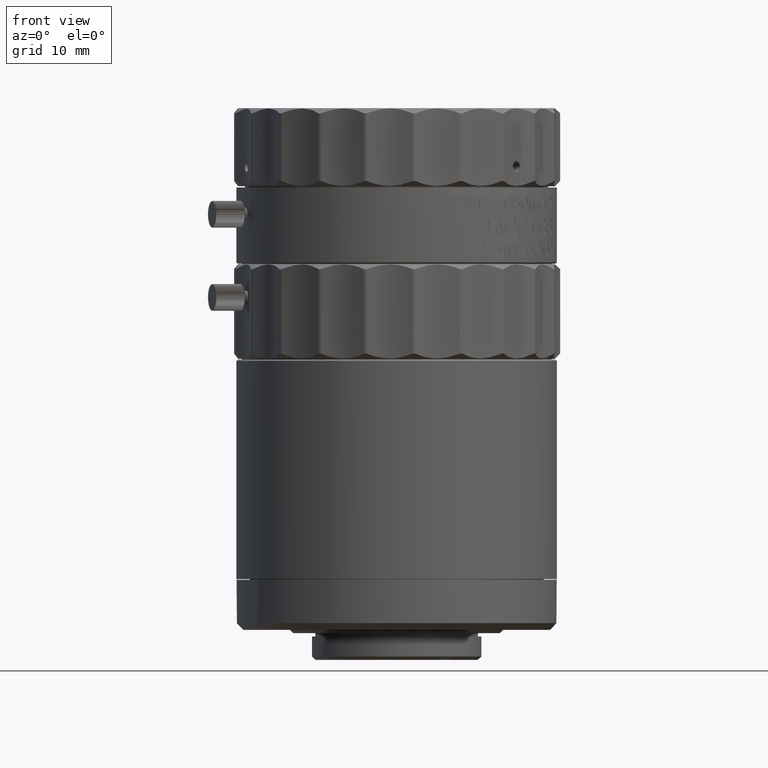
[diagram: clean part render]
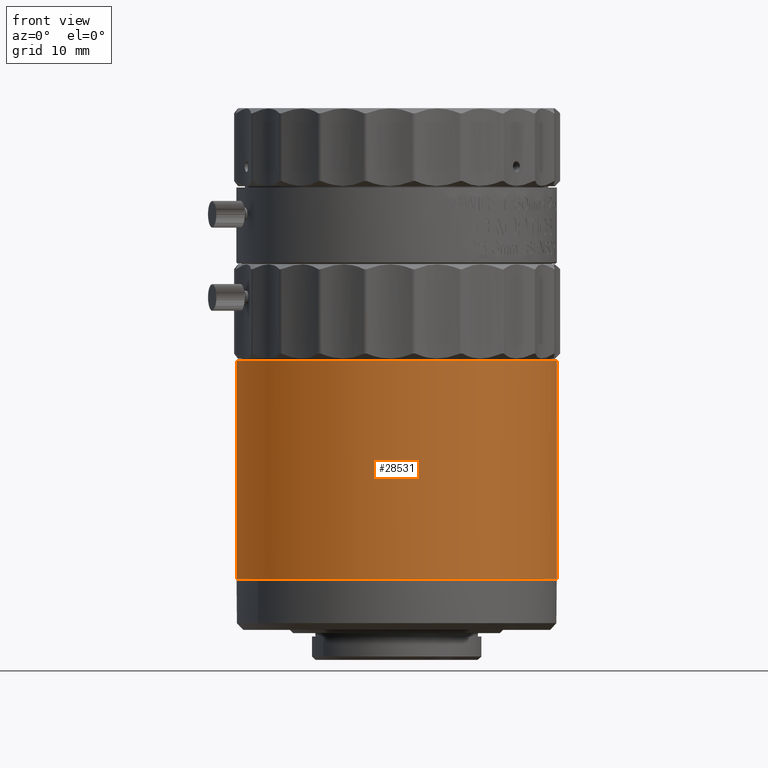
[diagram: same view with one face highlighted and labeled with its STEP entity id]
A machine part, front view. The second image highlights one B-rep face of the part: STEP entity #28531.
In plain terms, the highlighted cylindrical surface (partial cylindrical patch) has radius 24 mm, axis along (0, 0, -1).
Its self-contained STEP definition (entity closure, byte-faithful):
#776 = CARTESIAN_POINT ( 'NONE',  ( 47.99999999548978025, 149.2256510172016988, -58.62999999999953360 ) ) ;
#1317 = CARTESIAN_POINT ( 'NONE',  ( 8.140157981549839050, 132.7151638609855695, -58.62999999999949807 ) ) ;
#3712 = EDGE_CURVE ( 'NONE', #46484, #56178, #78112, .T. ) ;
#8475 = VERTEX_POINT ( 'NONE', #39177 ) ;
#8549 = CARTESIAN_POINT ( 'NONE',  ( 5.918716512470976632, 134.9366053300650776, -58.62999999999951228 ) ) ;
#9687 = CARTESIAN_POINT ( 'NONE',  ( 22.42920366869163118, 126.7964473440002564, -58.62999999999951228 ) ) ;
#10675 = VECTOR ( 'NONE', #57140, 1000.000000000000000 ) ;
#16157 = CARTESIAN_POINT ( 'NONE',  ( 18.73170731256040256, 127.3818131976463803, -25.94999999999355111 ) ) ;
#16403 = CARTESIAN_POINT ( 'NONE',  ( 38.63975500080410086, 131.7138643300405931, -58.62999999999950518 ) ) ;
#17255 = EDGE_LOOP ( 'NONE', ( #30216, #107360, #44828, #75118, #108159 ) ) ;
#17289 = FACE_OUTER_BOUND ( 'NONE', #17255, .T. ) ;
#17513 = CARTESIAN_POINT ( 'NONE',  ( 31.73317579617914674, 128.0222208338436189, -58.62999999999949807 ) ) ;
#17623 = CARTESIAN_POINT ( 'NONE',  ( 47.79843597074157202, 147.2123008428603157, -25.94999999999374651 ) ) ;
#18085 = CARTESIAN_POINT ( 'NONE',  ( 39.85984200942494482, 132.7151638609809652, -58.62999999999951228 ) ) ;
#18211 = CARTESIAN_POINT ( 'NONE',  ( 44.85495547797269467, 138.7846825763465972, -25.94999999999351914 ) ) ;
#19841 = DIRECTION ( 'NONE',  ( 0.000000000000000000, 0.000000000000000000, -1.000000000000000000 ) ) ;
#20731 = CARTESIAN_POINT ( 'NONE',  ( 3.573119269014975785, 137.9113028274331043, -25.94999999999264162 ) ) ;
#23616 = VERTEX_POINT ( 'NONE', #44475 ) ;
#24329 = EDGE_CURVE ( 'NONE', #23616, #8475, #108309, .T. ) ;
#24809 = CARTESIAN_POINT ( 'NONE',  ( 0.1547061045958462722, 147.6548935314482662, -58.62999999999950518 ) ) ;
#25493 = CARTESIAN_POINT ( 'NONE',  ( 46.40759985592043080, 142.0151530484752982, -25.94999999999360796 ) ) ;
#25934 = CARTESIAN_POINT ( 'NONE',  ( 16.26682419479427466, 128.0222208338458643, -58.62999999999951228 ) ) ;
#26013 = CARTESIAN_POINT ( 'NONE',  ( -4.510000012336590203E-09, 150.7964473435969524, -42.28999999999950177 ) ) ;
#27069 = CARTESIAN_POINT ( 'NONE',  ( 13.36437104265501397, 129.2244562936149919, -58.62999999999951228 ) ) ;
#28531 = ADVANCED_FACE ( 'NONE', ( #17289 ), #51436, .T. ) ;
#30216 = ORIENTED_EDGE ( 'NONE', *, *, #82172, .F. ) ;
#30219 = CARTESIAN_POINT ( 'NONE',  ( 6.945177868924854891, 133.6962295776182827, -25.94999999999261320 ) ) ;
#30617 = CARTESIAN_POINT ( 'NONE',  ( 22.27268136812196886, 126.7916971605616254, -25.94999999999258478 ) ) ;
#31844 = AXIS2_PLACEMENT_3D ( 'NONE', #83922, #31908, #100161 ) ;
#31908 = DIRECTION ( 'NONE',  ( 0.000000000000000000, 0.000000000000000000, -1.000000000000000000 ) ) ;
#33895 = CARTESIAN_POINT ( 'NONE',  ( 37.59327773420465491, 130.9360731952602634, -25.94999999999320650 ) ) ;
#34897 = CARTESIAN_POINT ( 'NONE',  ( 17.77721835126766337, 127.5640477755395352, -58.62999999999951228 ) ) ;
#35468 = CARTESIAN_POINT ( 'NONE',  ( 9.360244990170373924, 131.7138643300447995, -58.62999999999951228 ) ) ;
#39177 = CARTESIAN_POINT ( 'NONE',  ( 47.99999999549599750, 150.7964473442904989, -25.94999999999589946 ) ) ;
#41915 = CARTESIAN_POINT ( 'NONE',  ( 16.09857192830328643, 127.9742686590996357, -25.94999999999245688 ) ) ;
#42165 = CARTESIAN_POINT ( 'NONE',  ( 11.97238381586295297, 129.9684889674368264, -58.62999999999949807 ) ) ;
#42278 = CARTESIAN_POINT ( 'NONE',  ( 47.99999999549599750, 150.7964473442904989, -25.94999999999589946 ) ) ;
#43741 = B_SPLINE_CURVE_WITH_KNOTS ( 'NONE', 3,
 ( #90101, #72769, #89546, #106837, #20731, #30219, #98481, #92828, #41915, #16157 ),
 .UNSPECIFIED., .F., .F.,
 ( 4, 2, 2, 2, 4 ),
 ( 0.6995191522643560145, 0.7746393641982669553, 0.8497595761321780072, 0.9248797880660890591, 1.000000000000000000 ),
 .UNSPECIFIED. ) ;
#44475 = CARTESIAN_POINT ( 'NONE',  ( 18.73170731256040256, 127.3818131976463803, -25.94999999999355111 ) ) ;
#44828 = ORIENTED_EDGE ( 'NONE', *, *, #97066, .F. ) ;
#46484 = VERTEX_POINT ( 'NONE', #86143 ) ;
#47122 = LINE ( 'NONE', #90177, #10675 ) ;
#50565 = CARTESIAN_POINT ( 'NONE',  ( 47.23239956395046590, 144.5736656997776493, -58.62999999999951228 ) ) ;
#51098 = CARTESIAN_POINT ( 'NONE',  ( 4.917416981530578823, 136.1566923386859287, -58.62999999999951228 ) ) ;
#51436 = CYLINDRICAL_SURFACE ( 'NONE', #31844, 24.00000000000000000 ) ;
#51649 = CARTESIAN_POINT ( 'NONE',  ( 43.08258300944518737, 136.1566923386803865, -58.62999999999951228 ) ) ;
#52224 = CARTESIAN_POINT ( 'NONE',  ( 45.57199104587500216, 140.1608183911650087, -58.62999999999951228 ) ) ;
#52334 = CARTESIAN_POINT ( 'NONE',  ( 43.89699548627676506, 137.2568302353301704, -25.94999999999346940 ) ) ;
#56178 = VERTEX_POINT ( 'NONE', #77656 ) ;
#57140 = DIRECTION ( 'NONE',  ( 0.000000000000000000, 0.000000000000000000, -1.000000000000000000 ) ) ;
#58332 = CARTESIAN_POINT ( 'NONE',  ( -4.518404747577697833E-09, 150.7964473435969524, -25.94999999999286899 ) ) ;
#58966 = CARTESIAN_POINT ( 'NONE',  ( 27.14155380804173845, 126.9511534531058459, -58.62999999999951228 ) ) ;
#60083 = CARTESIAN_POINT ( 'NONE',  ( 25.57079632228141719, 126.7964473439997732, -58.62999999999950518 ) ) ;
#60195 = CARTESIAN_POINT ( 'NONE',  ( 36.06801687745453933, 129.9739924083689857, -25.94999999999314610 ) ) ;
#60650 = CARTESIAN_POINT ( 'NONE',  ( 47.99999999549000052, 150.7964473439965332, -58.62999999999975387 ) ) ;
#61218 = CARTESIAN_POINT ( 'NONE',  ( 46.77422650564410844, 143.0632715433042108, -58.62999999999950518 ) ) ;
#65306 = CARTESIAN_POINT ( 'NONE',  ( 31.14087783385467390, 127.8134204609432061, -25.94999999999295426 ) ) ;
#67363 = CARTESIAN_POINT ( 'NONE',  ( -4.510000012336590203E-09, 150.7964473440034965, -58.62999999999975387 ) ) ;
#67778 = VERTEX_POINT ( 'NONE', #58332 ) ;
#68042 = CARTESIAN_POINT ( 'NONE',  ( 40.39208453959206224, 133.1751186395924265, -25.94999999999331664 ) ) ;
#69032 = CARTESIAN_POINT ( 'NONE',  ( 42.08128347850444584, 134.9366053300598765, -58.62999999999949807 ) ) ;
#69588 = CARTESIAN_POINT ( 'NONE',  ( 47.84529388638325287, 147.6548935314413882, -58.62999999999953360 ) ) ;
#72769 = CARTESIAN_POINT ( 'NONE',  ( -4.481541602662645907E-09, 148.0974835747344116, -25.94999999999263096 ) ) ;
#73693 = CARTESIAN_POINT ( 'NONE',  ( 27.64837494882173274, 127.0077731226472650, -25.94999999999281215 ) ) ;
#75118 = ORIENTED_EDGE ( 'NONE', *, *, #86161, .T. ) ;
#76296 = CARTESIAN_POINT ( 'NONE',  ( 0.7676004270277370090, 144.5736656997843852, -58.62999999999949097 ) ) ;
#76413 = CARTESIAN_POINT ( 'NONE',  ( 47.00221923186213502, 143.7176359175210223, -25.94999999999365770 ) ) ;
#76858 = CARTESIAN_POINT ( 'NONE',  ( 44.82795837205312495, 138.7688311643728980, -58.62999999999950518 ) ) ;
#77431 = CARTESIAN_POINT ( 'NONE',  ( 1.225773485333655932, 143.0632715433108615, -58.62999999999950518 ) ) ;
#77656 = CARTESIAN_POINT ( 'NONE',  ( 47.99999999549000052, 150.7964473439965332, -58.62999999999975387 ) ) ;
#78096 = CARTESIAN_POINT ( 'NONE',  ( 41.66551330022360844, 134.4519895466287096, -25.94999999999336993 ) ) ;
#78112 = B_SPLINE_CURVE_WITH_KNOTS ( 'NONE', 3,
 ( #67363, #85241, #24809, #76296, #77431, #85798, #103690, #51098, #8549, #1317, #35468, #42165, #27069, #25934, #34897, #94756, #9687, #60083, #58966, #95323, #17513, #93086, #86372, #16403, #18085, #69032, #51649, #76858, #52224, #61218, #50565, #69588, #776, #60650 ),
 .UNSPECIFIED., .F., .F.,
 ( 4, 2, 2, 2, 2, 2, 2, 2, 2, 2, 2, 2, 2, 2, 2, 2, 4 ),
 ( 0.5000000000000000000, 0.5312500000000001110, 0.5625000000000001110, 0.5937500000000002220, 0.6250000000000002220, 0.6562500000000003331, 0.6875000000000004441, 0.7187500000000004441, 0.7500000000000004441, 0.7812500000000004441, 0.8125000000000003331, 0.8437500000000002220, 0.8750000000000002220, 0.9062500000000002220, 0.9375000000000002220, 0.9687500000000001110, 1.000000000000000000 ),
 .UNSPECIFIED. ) ;
#79717 = LINE ( 'NONE', #26013, #92262 ) ;
#82172 = EDGE_CURVE ( 'NONE', #8475, #56178, #47122, .T. ) ;
#83922 = CARTESIAN_POINT ( 'NONE',  ( 23.99999999549000052, 150.7964473440000006, -42.28999999999950177 ) ) ;
#85241 = CARTESIAN_POINT ( 'NONE',  ( -4.510226710540525795E-09, 149.2256510172086053, -58.62999999999950518 ) ) ;
#85798 = CARTESIAN_POINT ( 'NONE',  ( 2.428008945101928440, 140.1608183911712899, -58.62999999999950518 ) ) ;
#86143 = CARTESIAN_POINT ( 'NONE',  ( -4.510000012336590203E-09, 150.7964473440034965, -58.62999999999975387 ) ) ;
#86161 = EDGE_CURVE ( 'NONE', #67778, #46484, #79717, .T. ) ;
#86372 = CARTESIAN_POINT ( 'NONE',  ( 36.02761617511103509, 129.9684889674333874, -58.62999999999949807 ) ) ;
#89546 = CARTESIAN_POINT ( 'NONE',  ( 0.4595445935155896833, 145.3990993939324881, -25.94999999999264162 ) ) ;
#90101 = CARTESIAN_POINT ( 'NONE',  ( -4.518404747577697833E-09, 150.7964473435969524, -25.94999999999286899 ) ) ;
#90177 = CARTESIAN_POINT ( 'NONE',  ( 47.99999999549000052, 150.7964473444030205, -42.28999999999950177 ) ) ;
#91556 = CARTESIAN_POINT ( 'NONE',  ( 18.73170731256040256, 127.3818131976463803, -25.94999999999355111 ) ) ;
#92262 = VECTOR ( 'NONE', #19841, 1000.000000000000000 ) ;
#92828 = CARTESIAN_POINT ( 'NONE',  ( 13.56687763925893009, 129.0149330870351889, -25.94999999999250662 ) ) ;
#93086 = CARTESIAN_POINT ( 'NONE',  ( 34.63562894831873962, 129.2244562936118939, -58.62999999999950518 ) ) ;
#94756 = CARTESIAN_POINT ( 'NONE',  ( 20.85844618293137032, 126.9511534531067269, -58.62999999999949807 ) ) ;
#95323 = CARTESIAN_POINT ( 'NONE',  ( 30.22278163970560527, 127.5640477755377304, -58.62999999999950518 ) ) ;
#97066 = EDGE_CURVE ( 'NONE', #67778, #23616, #43741, .T. ) ;
#98481 = CARTESIAN_POINT ( 'NONE',  ( 8.989689146179767221, 131.8762207694176709, -25.94999999999258122 ) ) ;
#98865 = CARTESIAN_POINT ( 'NONE',  ( 25.85688984771883270, 126.8013724100383115, -25.94999999999273399 ) ) ;
#99394 = CARTESIAN_POINT ( 'NONE',  ( 32.84174938423713286, 128.4126333536106586, -25.94999999999302887 ) ) ;
#100161 = DIRECTION ( 'NONE',  ( -1.000000000000000000, -1.679327972977280947E-11, 0.000000000000000000 ) ) ;
#103690 = CARTESIAN_POINT ( 'NONE',  ( 3.172041618923402417, 138.7688311643789234, -58.62999999999949097 ) ) ;
#106837 = CARTESIAN_POINT ( 'NONE',  ( 2.246296077932530277, 140.3054621045815793, -25.94999999999263451 ) ) ;
#107208 = CARTESIAN_POINT ( 'NONE',  ( 20.48010806295321728, 126.9884230288033393, -25.94999999999248885 ) ) ;
#107360 = ORIENTED_EDGE ( 'NONE', *, *, #24329, .F. ) ;
#108159 = ORIENTED_EDGE ( 'NONE', *, *, #3712, .T. ) ;
#108309 = B_SPLINE_CURVE_WITH_KNOTS ( 'NONE', 3,
 ( #91556, #107208, #30617, #98865, #73693, #65306, #99394, #60195, #33895, #68042, #78096, #52334, #18211, #25493, #76413, #17623, #110478, #42278 ),
 .UNSPECIFIED., .F., .F.,
 ( 4, 2, 2, 2, 2, 2, 2, 2, 4 ),
 ( 0.000000000000000000, 0.1250000000000000000, 0.2500000000000000000, 0.3750000000000000000, 0.5000000000000000000, 0.6250000000000000000, 0.7500000000000000000, 0.8750000000000000000, 1.000000000000000000 ),
 .UNSPECIFIED. ) ;
#110478 = CARTESIAN_POINT ( 'NONE',  ( 47.99999999552547081, 149.0043365750801456, -25.94999999999380691 ) ) ;